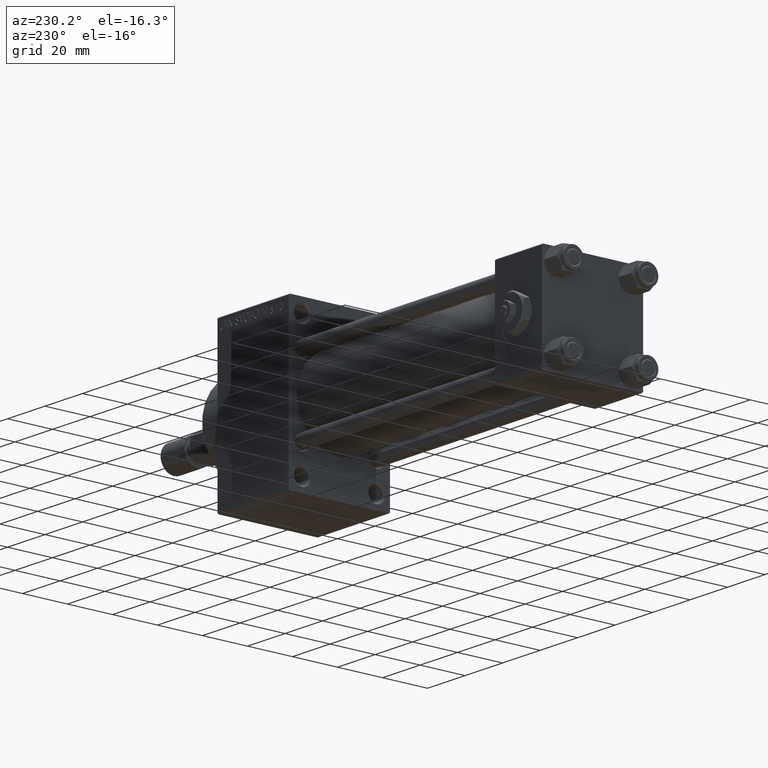
[diagram: clean part render]
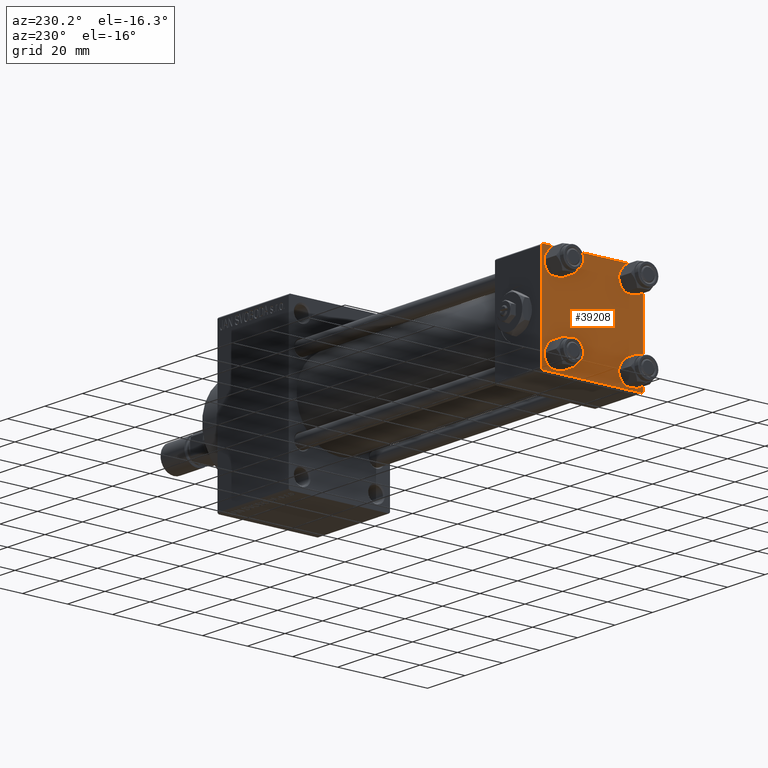
[diagram: same view with one face highlighted and labeled with its STEP entity id]
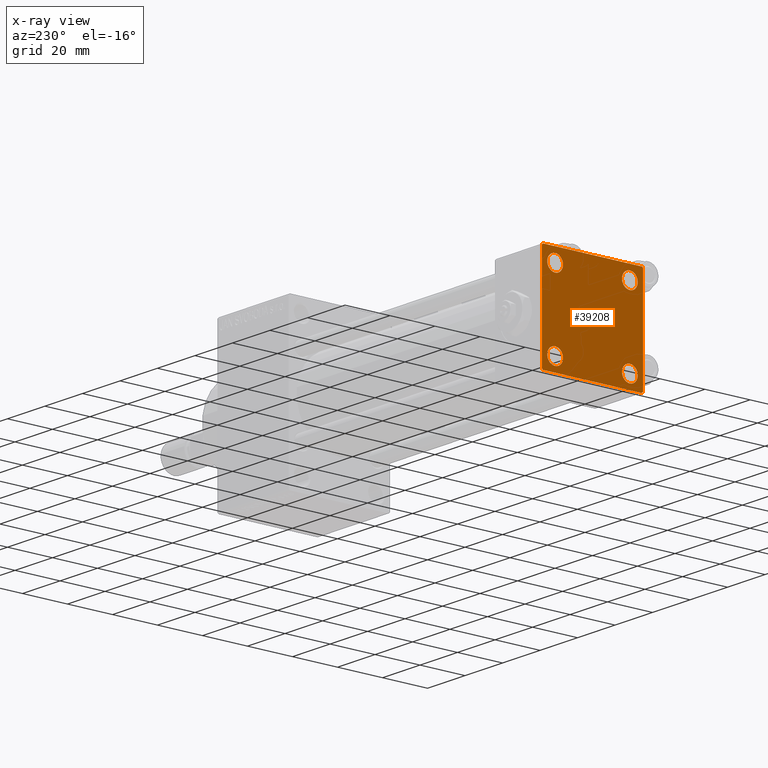
[diagram: x-ray of the same camera — body ghosted, the highlighted face saturated]
A machine part, auxiliary view. The second image highlights one B-rep face of the part: STEP entity #39208.
The next image is the same camera in x-ray: the body ghosted, the highlighted face saturated — about 0% of this face is hidden behind the body in this view.
In plain terms, the highlighted planar face has unit normal (-1, 0, 0).
Its self-contained STEP definition (entity closure, byte-faithful):
#436 = ORIENTED_EDGE ( 'NONE', *, *, #44239, .T. ) ;
#454 = AXIS2_PLACEMENT_3D ( 'NONE', #5682, #5436, #25226 ) ;
#819 = EDGE_CURVE ( 'NONE', #18176, #4847, #24584, .T. ) ;
#888 = CIRCLE ( 'NONE', #14509, 3.499999999999996003 ) ;
#892 = DIRECTION ( 'NONE',  ( 1.000000000000000000, -0.000000000000000000, 0.000000000000000000 ) ) ;
#920 = CARTESIAN_POINT ( 'NONE',  ( 0.000000000000000000, 21.99999999999999289, 22.50000000000000355 ) ) ;
#1355 = CARTESIAN_POINT ( 'NONE',  ( 0.000000000000000000, 21.99999999999999289, -22.49999999999999645 ) ) ;
#1515 = CARTESIAN_POINT ( 'NONE',  ( 0.000000000000000000, -16.59999999999999076, -13.10000000000001030 ) ) ;
#1601 = DIRECTION ( 'NONE',  ( 1.000000000000000000, -0.000000000000000000, 0.000000000000000000 ) ) ;
#1640 = ORIENTED_EDGE ( 'NONE', *, *, #17243, .T. ) ;
#1893 = AXIS2_PLACEMENT_3D ( 'NONE', #15893, #15142, #37910 ) ;
#2303 = AXIS2_PLACEMENT_3D ( 'NONE', #35073, #9000, #35797 ) ;
#2309 = CARTESIAN_POINT ( 'NONE',  ( 0.000000000000000000, 22.50000000000000000, -22.49999999999999645 ) ) ;
#2546 = EDGE_CURVE ( 'NONE', #19202, #2819, #24734, .T. ) ;
#2715 = CARTESIAN_POINT ( 'NONE',  ( 0.000000000000000000, -16.59999999999999076, -20.10000000000000497 ) ) ;
#2819 = VERTEX_POINT ( 'NONE', #15244 ) ;
#3098 = DIRECTION ( 'NONE',  ( 1.000000000000000000, -0.000000000000000000, 0.000000000000000000 ) ) ;
#3462 = ORIENTED_EDGE ( 'NONE', *, *, #46809, .T. ) ;
#3653 = LINE ( 'NONE', #19450, #48540 ) ;
#3713 = EDGE_LOOP ( 'NONE', ( #42506, #436 ) ) ;
#4148 = CARTESIAN_POINT ( 'NONE',  ( 0.000000000000000000, 16.59999999999999787, 16.60000000000000497 ) ) ;
#4183 = EDGE_CURVE ( 'NONE', #2819, #19202, #44761, .T. ) ;
#4531 = EDGE_LOOP ( 'NONE', ( #37638, #41094 ) ) ;
#4817 = AXIS2_PLACEMENT_3D ( 'NONE', #4148, #892, #24181 ) ;
#4847 = VERTEX_POINT ( 'NONE', #37589 ) ;
#5436 = DIRECTION ( 'NONE',  ( 1.000000000000000000, -0.000000000000000000, 0.000000000000000000 ) ) ;
#5682 = CARTESIAN_POINT ( 'NONE',  ( 0.000000000000000000, -16.59999999999999076, 16.60000000000000853 ) ) ;
#5951 = CARTESIAN_POINT ( 'NONE',  ( 0.000000000000000000, 16.59999999999999787, -20.10000000000000142 ) ) ;
#6563 = VERTEX_POINT ( 'NONE', #21419 ) ;
#6910 = DIRECTION ( 'NONE',  ( 0.000000000000000000, 0.000000000000000000, -1.000000000000000000 ) ) ;
#7127 = AXIS2_PLACEMENT_3D ( 'NONE', #45646, #8346, #23388 ) ;
#8094 = DIRECTION ( 'NONE',  ( 0.000000000000000000, 0.000000000000000000, -1.000000000000000000 ) ) ;
#8346 = DIRECTION ( 'NONE',  ( 1.000000000000000000, -0.000000000000000000, 0.000000000000000000 ) ) ;
#8360 = DIRECTION ( 'NONE',  ( -1.000000000000000000, 0.000000000000000000, -0.000000000000000000 ) ) ;
#8747 = CARTESIAN_POINT ( 'NONE',  ( 0.000000000000000000, 22.50000000000000000, 21.99999999999999645 ) ) ;
#8824 = CARTESIAN_POINT ( 'NONE',  ( 0.000000000000000000, -22.50000000000000000, 22.50000000000000000 ) ) ;
#8851 = DIRECTION ( 'NONE',  ( 0.000000000000000000, -1.000000000000000000, -2.312964634635742957E-16 ) ) ;
#9000 = DIRECTION ( 'NONE',  ( 1.000000000000000000, -0.000000000000000000, 0.000000000000000000 ) ) ;
#9117 = CARTESIAN_POINT ( 'NONE',  ( 0.000000000000000000, 16.59999999999999787, -13.10000000000000675 ) ) ;
#9233 = VERTEX_POINT ( 'NONE', #9117 ) ;
#9381 = ORIENTED_EDGE ( 'NONE', *, *, #819, .F. ) ;
#9873 = AXIS2_PLACEMENT_3D ( 'NONE', #27400, #8360, #34173 ) ;
#10041 = EDGE_LOOP ( 'NONE', ( #36783, #37581, #1640, #10281, #17415, #27078, #9381, #3462 ) ) ;
#10281 = ORIENTED_EDGE ( 'NONE', *, *, #28815, .T. ) ;
#10814 = CIRCLE ( 'NONE', #48402, 3.499999999999996003 ) ;
#11116 = DIRECTION ( 'NONE',  ( 0.000000000000000000, 0.000000000000000000, 1.000000000000000000 ) ) ;
#11988 = CARTESIAN_POINT ( 'NONE',  ( 0.000000000000000000, -22.50000000000000000, -21.99999999999997158 ) ) ;
#12124 = PLANE ( 'NONE',  #9873 ) ;
#12353 = LINE ( 'NONE', #8824, #28862 ) ;
#12582 = VERTEX_POINT ( 'NONE', #1355 ) ;
#12842 = CARTESIAN_POINT ( 'NONE',  ( -0.000000000000000000, -22.24999999999984013, 22.25000000000015277 ) ) ;
#14369 = CIRCLE ( 'NONE', #7127, 3.499999999999996003 ) ;
#14509 = AXIS2_PLACEMENT_3D ( 'NONE', #24356, #36341, #48347 ) ;
#14792 = CARTESIAN_POINT ( 'NONE',  ( 0.000000000000000000, 22.50000000000000000, -21.99999999999996803 ) ) ;
#14924 = DIRECTION ( 'NONE',  ( -0.000000000000000000, -0.7071067811865426878, -0.7071067811865524577 ) ) ;
#15142 = DIRECTION ( 'NONE',  ( 1.000000000000000000, -0.000000000000000000, 0.000000000000000000 ) ) ;
#15244 = CARTESIAN_POINT ( 'NONE',  ( 0.000000000000000000, 16.59999999999999787, 20.10000000000000142 ) ) ;
#15595 = EDGE_CURVE ( 'NONE', #22252, #4847, #44350, .T. ) ;
#15648 = FACE_BOUND ( 'NONE', #32971, .T. ) ;
#15660 = CIRCLE ( 'NONE', #454, 3.499999999999996003 ) ;
#15873 = ORIENTED_EDGE ( 'NONE', *, *, #4183, .T. ) ;
#15893 = CARTESIAN_POINT ( 'NONE',  ( 0.000000000000000000, 16.59999999999999787, -16.60000000000000497 ) ) ;
#16912 = DIRECTION ( 'NONE',  ( 0.000000000000000000, 0.000000000000000000, 1.000000000000000000 ) ) ;
#17099 = VECTOR ( 'NONE', #40111, 999.9999999999998863 ) ;
#17243 = EDGE_CURVE ( 'NONE', #12582, #6563, #36617, .T. ) ;
#17415 = ORIENTED_EDGE ( 'NONE', *, *, #30404, .F. ) ;
#18176 = VERTEX_POINT ( 'NONE', #920 ) ;
#18936 = LINE ( 'NONE', #30435, #34189 ) ;
#19202 = VERTEX_POINT ( 'NONE', #37201 ) ;
#19248 = DIRECTION ( 'NONE',  ( 0.000000000000000000, -0.7071067811865426878, 0.7071067811865524577 ) ) ;
#19450 = CARTESIAN_POINT ( 'NONE',  ( 0.000000000000000000, 22.24999999999999645, 22.24999999999999645 ) ) ;
#20104 = DIRECTION ( 'NONE',  ( 0.000000000000000000, -1.000000000000000000, -7.709882115452476934E-17 ) ) ;
#20826 = CARTESIAN_POINT ( 'NONE',  ( 0.000000000000000000, 22.50000000000000000, 22.50000000000000355 ) ) ;
#21419 = CARTESIAN_POINT ( 'NONE',  ( 0.000000000000000000, -21.99999999999997158, -22.50000000000000711 ) ) ;
#22210 = LINE ( 'NONE', #26216, #35755 ) ;
#22252 = VERTEX_POINT ( 'NONE', #34513 ) ;
#22723 = EDGE_CURVE ( 'NONE', #30045, #43278, #10814, .T. ) ;
#23388 = DIRECTION ( 'NONE',  ( 0.000000000000000000, 0.000000000000000000, 1.000000000000000000 ) ) ;
#23587 = EDGE_CURVE ( 'NONE', #9233, #44765, #24407, .T. ) ;
#24181 = DIRECTION ( 'NONE',  ( 0.000000000000000000, 0.000000000000000000, 1.000000000000000000 ) ) ;
#24356 = CARTESIAN_POINT ( 'NONE',  ( 0.000000000000000000, -16.59999999999999076, 16.60000000000000853 ) ) ;
#24407 = CIRCLE ( 'NONE', #37189, 3.499999999999996003 ) ;
#24584 = LINE ( 'NONE', #20826, #39035 ) ;
#24734 = CIRCLE ( 'NONE', #2303, 3.499999999999996003 ) ;
#24966 = EDGE_CURVE ( 'NONE', #44473, #12582, #18936, .T. ) ;
#25118 = VECTOR ( 'NONE', #8851, 1000.000000000000000 ) ;
#25226 = DIRECTION ( 'NONE',  ( 0.000000000000000000, 0.000000000000000000, 1.000000000000000000 ) ) ;
#26216 = CARTESIAN_POINT ( 'NONE',  ( 0.000000000000000000, 22.50000000000000000, 22.50000000000000355 ) ) ;
#26766 = VERTEX_POINT ( 'NONE', #33666 ) ;
#26853 = EDGE_CURVE ( 'NONE', #43278, #30045, #14369, .T. ) ;
#27078 = ORIENTED_EDGE ( 'NONE', *, *, #15595, .T. ) ;
#27400 = CARTESIAN_POINT ( 'NONE',  ( 0.000000000000000000, 0.000000000000000000, 0.000000000000000000 ) ) ;
#27562 = ORIENTED_EDGE ( 'NONE', *, *, #23587, .T. ) ;
#27918 = VERTEX_POINT ( 'NONE', #8747 ) ;
#28386 = VERTEX_POINT ( 'NONE', #28581 ) ;
#28581 = CARTESIAN_POINT ( 'NONE',  ( 0.000000000000000000, -16.59999999999999076, 20.10000000000000853 ) ) ;
#28815 = EDGE_CURVE ( 'NONE', #6563, #30930, #30017, .T. ) ;
#28862 = VECTOR ( 'NONE', #8094, 1000.000000000000000 ) ;
#29621 = VECTOR ( 'NONE', #19248, 1000.000000000000000 ) ;
#30017 = LINE ( 'NONE', #38252, #29621 ) ;
#30045 = VERTEX_POINT ( 'NONE', #2715 ) ;
#30404 = EDGE_CURVE ( 'NONE', #22252, #30930, #12353, .T. ) ;
#30435 = CARTESIAN_POINT ( 'NONE',  ( 0.000000000000000000, 22.25000000000014566, -22.24999999999984013 ) ) ;
#30464 = EDGE_CURVE ( 'NONE', #28386, #26766, #888, .T. ) ;
#30909 = FACE_BOUND ( 'NONE', #38644, .T. ) ;
#30930 = VERTEX_POINT ( 'NONE', #11988 ) ;
#31161 = FACE_BOUND ( 'NONE', #4531, .T. ) ;
#32291 = CIRCLE ( 'NONE', #1893, 3.499999999999996003 ) ;
#32971 = EDGE_LOOP ( 'NONE', ( #27562, #41415 ) ) ;
#33666 = CARTESIAN_POINT ( 'NONE',  ( 0.000000000000000000, -16.59999999999999076, 13.10000000000001030 ) ) ;
#34173 = DIRECTION ( 'NONE',  ( -0.000000000000000000, 0.000000000000000000, 1.000000000000000000 ) ) ;
#34189 = VECTOR ( 'NONE', #14924, 1000.000000000000000 ) ;
#34513 = CARTESIAN_POINT ( 'NONE',  ( 0.000000000000000000, -22.50000000000000000, 22.00000000000000000 ) ) ;
#34669 = FACE_BOUND ( 'NONE', #3713, .T. ) ;
#35073 = CARTESIAN_POINT ( 'NONE',  ( 0.000000000000000000, 16.59999999999999787, 16.60000000000000497 ) ) ;
#35755 = VECTOR ( 'NONE', #6910, 1000.000000000000000 ) ;
#35797 = DIRECTION ( 'NONE',  ( 0.000000000000000000, 0.000000000000000000, 1.000000000000000000 ) ) ;
#35817 = ORIENTED_EDGE ( 'NONE', *, *, #2546, .T. ) ;
#35914 = CARTESIAN_POINT ( 'NONE',  ( 0.000000000000000000, -16.59999999999999076, -16.60000000000000853 ) ) ;
#36341 = DIRECTION ( 'NONE',  ( 1.000000000000000000, -0.000000000000000000, 0.000000000000000000 ) ) ;
#36617 = LINE ( 'NONE', #2309, #25118 ) ;
#36783 = ORIENTED_EDGE ( 'NONE', *, *, #46665, .T. ) ;
#37189 = AXIS2_PLACEMENT_3D ( 'NONE', #49414, #3098, #11116 ) ;
#37201 = CARTESIAN_POINT ( 'NONE',  ( 0.000000000000000000, 16.59999999999999787, 13.10000000000000675 ) ) ;
#37581 = ORIENTED_EDGE ( 'NONE', *, *, #24966, .T. ) ;
#37589 = CARTESIAN_POINT ( 'NONE',  ( 0.000000000000000000, -21.99999999999997868, 22.50000000000000000 ) ) ;
#37638 = ORIENTED_EDGE ( 'NONE', *, *, #26853, .T. ) ;
#37910 = DIRECTION ( 'NONE',  ( 0.000000000000000000, 0.000000000000000000, 1.000000000000000000 ) ) ;
#37959 = DIRECTION ( 'NONE',  ( 0.000000000000000000, 0.7071067811865474617, -0.7071067811865474617 ) ) ;
#38252 = CARTESIAN_POINT ( 'NONE',  ( 0.000000000000000000, -22.25000000000014566, -22.24999999999984013 ) ) ;
#38644 = EDGE_LOOP ( 'NONE', ( #15873, #35817 ) ) ;
#39035 = VECTOR ( 'NONE', #20104, 1000.000000000000000 ) ;
#39170 = EDGE_CURVE ( 'NONE', #44765, #9233, #32291, .T. ) ;
#39208 = ADVANCED_FACE ( 'NONE', ( #34669, #31161, #15648, #30909, #46397 ), #12124, .T. ) ;
#40111 = DIRECTION ( 'NONE',  ( -0.000000000000000000, 0.7071067811865525687, 0.7071067811865425767 ) ) ;
#41094 = ORIENTED_EDGE ( 'NONE', *, *, #22723, .T. ) ;
#41415 = ORIENTED_EDGE ( 'NONE', *, *, #39170, .T. ) ;
#42506 = ORIENTED_EDGE ( 'NONE', *, *, #30464, .T. ) ;
#43278 = VERTEX_POINT ( 'NONE', #1515 ) ;
#44239 = EDGE_CURVE ( 'NONE', #26766, #28386, #15660, .T. ) ;
#44350 = LINE ( 'NONE', #12842, #17099 ) ;
#44473 = VERTEX_POINT ( 'NONE', #14792 ) ;
#44761 = CIRCLE ( 'NONE', #4817, 3.499999999999996003 ) ;
#44765 = VERTEX_POINT ( 'NONE', #5951 ) ;
#45646 = CARTESIAN_POINT ( 'NONE',  ( 0.000000000000000000, -16.59999999999999076, -16.60000000000000853 ) ) ;
#46397 = FACE_OUTER_BOUND ( 'NONE', #10041, .T. ) ;
#46665 = EDGE_CURVE ( 'NONE', #27918, #44473, #22210, .T. ) ;
#46809 = EDGE_CURVE ( 'NONE', #18176, #27918, #3653, .T. ) ;
#48347 = DIRECTION ( 'NONE',  ( 0.000000000000000000, 0.000000000000000000, 1.000000000000000000 ) ) ;
#48402 = AXIS2_PLACEMENT_3D ( 'NONE', #35914, #1601, #16912 ) ;
#48540 = VECTOR ( 'NONE', #37959, 1000.000000000000114 ) ;
#49414 = CARTESIAN_POINT ( 'NONE',  ( 0.000000000000000000, 16.59999999999999787, -16.60000000000000497 ) ) ;